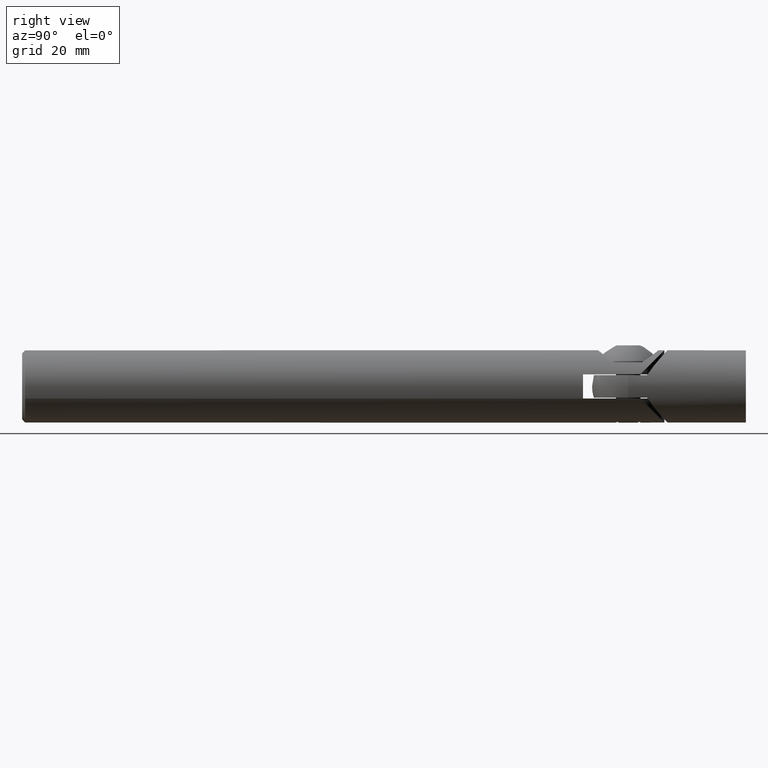
[diagram: clean part render]
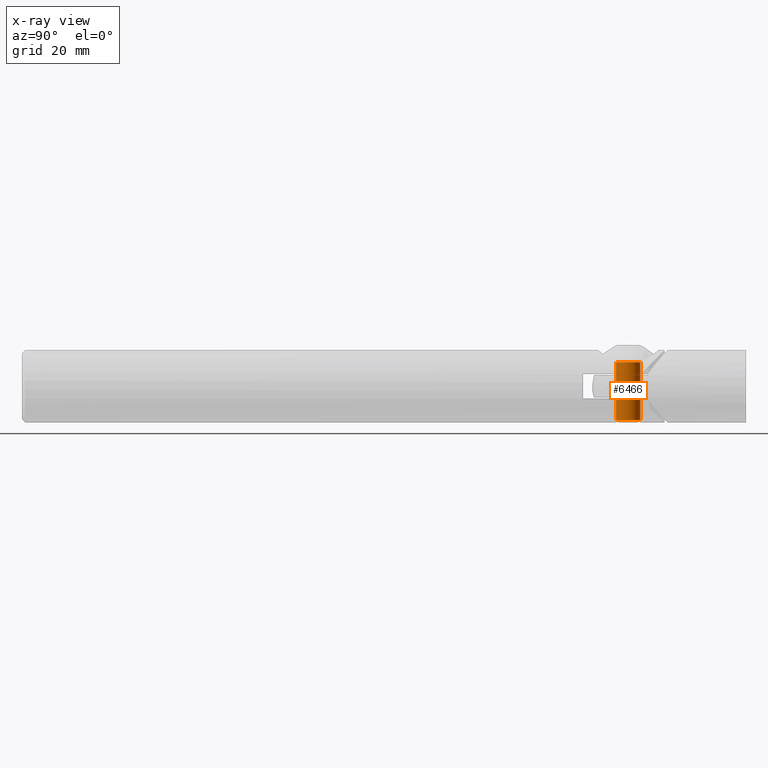
[diagram: x-ray — body ghosted, one internal face saturated and labeled with its STEP entity id]
A machine part, right view, then the same camera in x-ray: the body is ghosted and one INTERNAL B-rep face — a face not visible from any outside direction — is saturated and labeled: STEP entity #6466.
In plain terms, the highlighted cylindrical surface (bore or boss wall) has radius 2.0095 mm, axis along (-0, 0, 1).
Its self-contained STEP definition (entity closure, byte-faithful):
#382 = EDGE_CURVE ( 'NONE', #7168, #7168, #2035, .T. ) ;
#425 = EDGE_CURVE ( 'NONE', #8370, #8370, #9049, .T. ) ;
#980 = DIRECTION ( 'NONE',  ( 0.0000000000000000000, 0.0000000000000000000, -1.000000000000000000 ) ) ;
#1048 = DIRECTION ( 'NONE',  ( -0.0000000000000000000, -1.000000000000000000, -0.0000000000000000000 ) ) ;
#2035 = CIRCLE ( 'NONE', #7732, 2.009499999999997000 ) ;
#2263 = DIRECTION ( 'NONE',  ( 0.0000000000000000000, 0.0000000000000000000, -1.000000000000000000 ) ) ;
#2688 = ORIENTED_EDGE ( 'NONE', *, *, #382, .T. ) ;
#2896 = EDGE_LOOP ( 'NONE', ( #11028 ) ) ;
#5474 = FACE_OUTER_BOUND ( 'NONE', #2896, .T. ) ;
#5732 = DIRECTION ( 'NONE',  ( 0.0000000000000000000, 0.0000000000000000000, -1.000000000000000000 ) ) ;
#6438 = CARTESIAN_POINT ( 'NONE',  ( 0.0000000000000000000, 12.39810000000000100, 0.0000000000000000000 ) ) ;
#6466 = ADVANCED_FACE ( 'NONE', ( #12370, #5474 ), #13407, .T. ) ;
#6584 = CARTESIAN_POINT ( 'NONE',  ( 0.0000000000000000000, 2.799999999999999800, -2.009499999999999200 ) ) ;
#7168 = VERTEX_POINT ( 'NONE', #9709 ) ;
#7350 = AXIS2_PLACEMENT_3D ( 'NONE', #9531, #1048, #2263 ) ;
#7556 = DIRECTION ( 'NONE',  ( -0.0000000000000000000, -1.000000000000000000, -0.0000000000000000000 ) ) ;
#7732 = AXIS2_PLACEMENT_3D ( 'NONE', #6438, #7556, #980 ) ;
#8370 = VERTEX_POINT ( 'NONE', #6584 ) ;
#9041 = CARTESIAN_POINT ( 'NONE',  ( 0.0000000000000000000, 2.799999999999999800, 0.0000000000000000000 ) ) ;
#9049 = CIRCLE ( 'NONE', #11909, 2.009499999999999200 ) ;
#9531 = CARTESIAN_POINT ( 'NONE',  ( 0.0000000000000000000, 0.0000000000000000000, 0.0000000000000000000 ) ) ;
#9709 = CARTESIAN_POINT ( 'NONE',  ( 0.0000000000000000000, 12.39810000000000100, -2.009499999999997000 ) ) ;
#10117 = DIRECTION ( 'NONE',  ( -0.0000000000000000000, -1.000000000000000000, -0.0000000000000000000 ) ) ;
#11028 = ORIENTED_EDGE ( 'NONE', *, *, #425, .F. ) ;
#11909 = AXIS2_PLACEMENT_3D ( 'NONE', #9041, #10117, #5732 ) ;
#12370 = FACE_OUTER_BOUND ( 'NONE', #13565, .T. ) ;
#13407 = CYLINDRICAL_SURFACE ( 'NONE', #7350, 2.009499999999998300 ) ;
#13565 = EDGE_LOOP ( 'NONE', ( #2688 ) ) ;